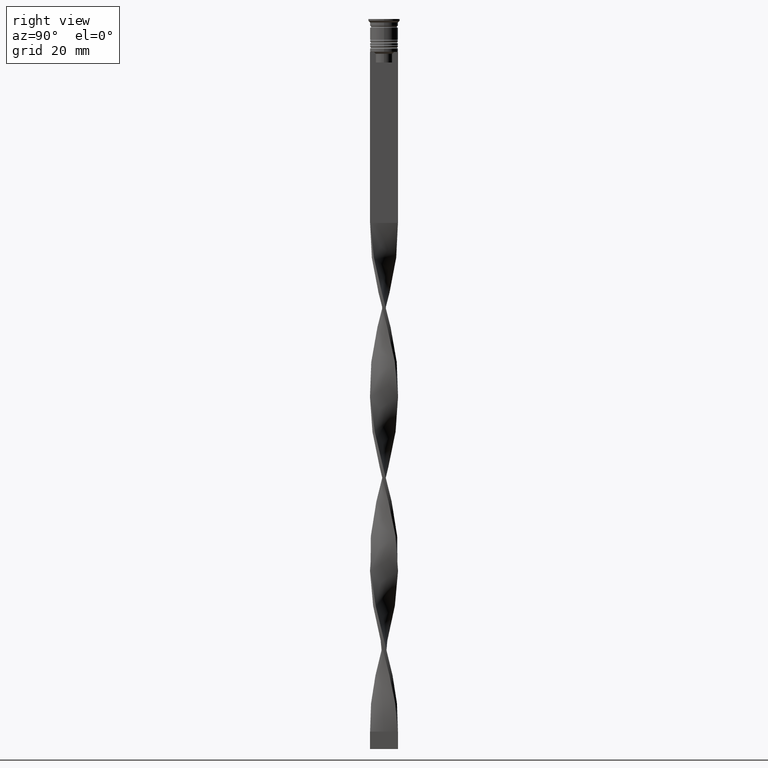
[diagram: clean part render]
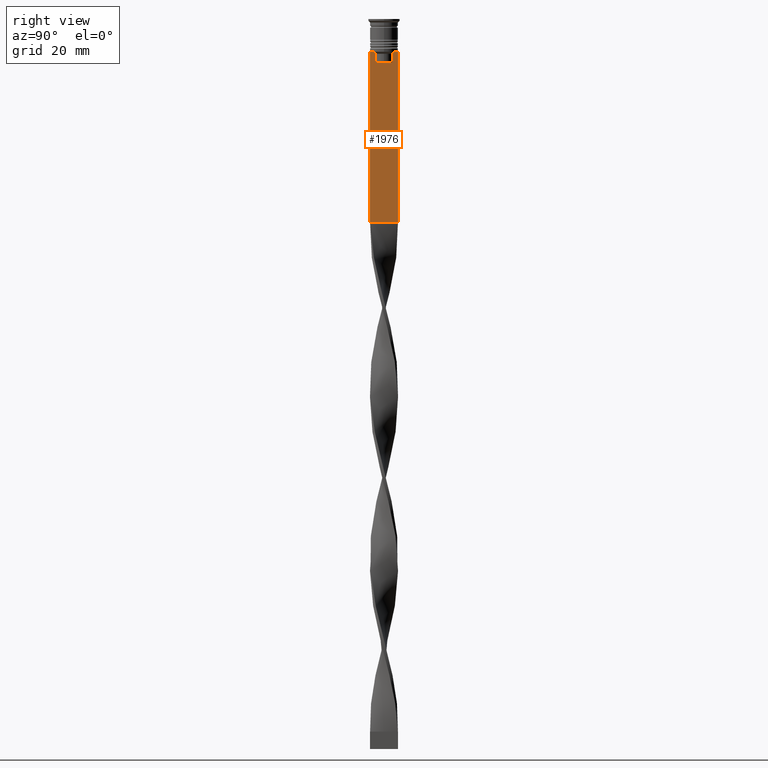
[diagram: same view with one face highlighted and labeled with its STEP entity id]
A machine part, right view. The second image highlights one B-rep face of the part: STEP entity #1976.
In plain terms, the highlighted planar face has unit normal (-1, 0, 0).
Its self-contained STEP definition (entity closure, byte-faithful):
#13 = VERTEX_POINT ( 'NONE', #1251 ) ;
#60 = CARTESIAN_POINT ( 'NONE',  ( 0.5000000000000000000, -4.000000000000000000, -9.500000000000000000 ) ) ;
#70 = CARTESIAN_POINT ( 'NONE',  ( 0.5000000000000000000, 2.347338918861097135, -10.00000000000000000 ) ) ;
#82 = CARTESIAN_POINT ( 'NONE',  ( 0.5000000000000000000, 4.000000000000000000, -9.500000000000000000 ) ) ;
#109 = VECTOR ( 'NONE', #3403, 1000.000000000000000 ) ;
#154 = VERTEX_POINT ( 'NONE', #3917 ) ;
#169 = VECTOR ( 'NONE', #633, 1000.000000000000000 ) ;
#187 = B_SPLINE_CURVE_WITH_KNOTS ( 'NONE', 3,
 ( #2487, #3676, #2462, #3120 ),
 .UNSPECIFIED., .F., .F.,
 ( 4, 4 ),
 ( 0.01178336557230038467, 0.01249758354768160280 ),
 .UNSPECIFIED. ) ;
#319 = DIRECTION ( 'NONE',  ( 0.000000000000000000, -1.000000000000000000, 0.000000000000000000 ) ) ;
#328 = ORIENTED_EDGE ( 'NONE', *, *, #2117, .T. ) ;
#369 = LINE ( 'NONE', #1599, #538 ) ;
#388 = PLANE ( 'NONE',  #1752 ) ;
#474 = EDGE_CURVE ( 'NONE', #3025, #13, #2350, .T. ) ;
#538 = VECTOR ( 'NONE', #1260, 1000.000000000000000 ) ;
#616 = ORIENTED_EDGE ( 'NONE', *, *, #1486, .F. ) ;
#633 = DIRECTION ( 'NONE',  ( 0.000000000000000000, -1.000000000000000000, 0.000000000000000000 ) ) ;
#657 = CARTESIAN_POINT ( 'NONE',  ( 0.5000000000000000000, -4.000000000000000000, -9.500000000000000000 ) ) ;
#681 = EDGE_CURVE ( 'NONE', #723, #1889, #1215, .T. ) ;
#699 = DIRECTION ( 'NONE',  ( 0.000000000000000000, -1.000000000000000000, 0.000000000000000000 ) ) ;
#723 = VERTEX_POINT ( 'NONE', #1033 ) ;
#725 = DIRECTION ( 'NONE',  ( 0.000000000000000000, -1.000000000000000000, 0.000000000000000000 ) ) ;
#738 = VECTOR ( 'NONE', #699, 1000.000000000000000 ) ;
#970 = VERTEX_POINT ( 'NONE', #82 ) ;
#1004 = VECTOR ( 'NONE', #1337, 1000.000000000000000 ) ;
#1033 = CARTESIAN_POINT ( 'NONE',  ( 0.5000000000000000000, -2.856571371417138572, -9.500000000000000000 ) ) ;
#1082 = CARTESIAN_POINT ( 'NONE',  ( 0.5000000000000000000, 4.000000000000000000, -1.437742251701450202 ) ) ;
#1083 = ORIENTED_EDGE ( 'NONE', *, *, #2904, .T. ) ;
#1215 = LINE ( 'NONE', #3109, #2654 ) ;
#1247 = ORIENTED_EDGE ( 'NONE', *, *, #2257, .T. ) ;
#1251 = CARTESIAN_POINT ( 'NONE',  ( 0.5000000000000000000, 2.347338918861097135, -10.00000000000000000 ) ) ;
#1260 = DIRECTION ( 'NONE',  ( 0.000000000000000000, 0.000000000000000000, -1.000000000000000000 ) ) ;
#1280 = CARTESIAN_POINT ( 'NONE',  ( 0.5000000000000000000, -2.347338918861097135, -10.00000000000000000 ) ) ;
#1337 = DIRECTION ( 'NONE',  ( 0.000000000000000000, -1.000000000000000000, 0.000000000000000000 ) ) ;
#1415 = ORIENTED_EDGE ( 'NONE', *, *, #681, .T. ) ;
#1436 = ORIENTED_EDGE ( 'NONE', *, *, #2618, .T. ) ;
#1486 = EDGE_CURVE ( 'NONE', #970, #2142, #3790, .T. ) ;
#1538 = CARTESIAN_POINT ( 'NONE',  ( 0.5000000000000000000, 2.856571371417138572, -9.500000000000000000 ) ) ;
#1543 = VERTEX_POINT ( 'NONE', #3261 ) ;
#1551 = EDGE_CURVE ( 'NONE', #2985, #2142, #3246, .T. ) ;
#1599 = CARTESIAN_POINT ( 'NONE',  ( 0.5000000000000000000, 2.347338918861097135, 0.000000000000000000 ) ) ;
#1678 = EDGE_CURVE ( 'NONE', #970, #3729, #3099, .T. ) ;
#1693 = VECTOR ( 'NONE', #2292, 1000.000000000000000 ) ;
#1752 = AXIS2_PLACEMENT_3D ( 'NONE', #2208, #1846, #1830 ) ;
#1776 = EDGE_CURVE ( 'NONE', #1543, #1991, #2765, .T. ) ;
#1779 = ORIENTED_EDGE ( 'NONE', *, *, #1776, .T. ) ;
#1830 = DIRECTION ( 'NONE',  ( 0.000000000000000000, 0.000000000000000000, 1.000000000000000000 ) ) ;
#1846 = DIRECTION ( 'NONE',  ( -1.000000000000000000, 0.000000000000000000, 0.000000000000000000 ) ) ;
#1854 = CARTESIAN_POINT ( 'NONE',  ( 0.5000000000000000000, 2.399999999999996803, -12.50000000000000000 ) ) ;
#1889 = VERTEX_POINT ( 'NONE', #3852 ) ;
#1948 = ORIENTED_EDGE ( 'NONE', *, *, #3861, .T. ) ;
#1976 = ADVANCED_FACE ( 'NONE', ( #2454 ), #388, .F. ) ;
#1988 = CARTESIAN_POINT ( 'NONE',  ( 0.5000000000000000000, -4.000000000000000000, -1.437742251701450202 ) ) ;
#1991 = VERTEX_POINT ( 'NONE', #3362 ) ;
#2068 = VERTEX_POINT ( 'NONE', #1280 ) ;
#2080 = CARTESIAN_POINT ( 'NONE',  ( 0.5000000000000000000, 2.687094542495898075, -9.666938847453439010 ) ) ;
#2097 = ORIENTED_EDGE ( 'NONE', *, *, #474, .T. ) ;
#2117 = EDGE_CURVE ( 'NONE', #13, #1543, #369, .T. ) ;
#2142 = VERTEX_POINT ( 'NONE', #2816 ) ;
#2190 = LINE ( 'NONE', #3674, #109 ) ;
#2204 = VECTOR ( 'NONE', #2617, 1000.000000000000000 ) ;
#2208 = CARTESIAN_POINT ( 'NONE',  ( 0.5000000000000000000, -4.000000000000000000, -1.437742251701450202 ) ) ;
#2257 = EDGE_CURVE ( 'NONE', #154, #2985, #2918, .T. ) ;
#2292 = DIRECTION ( 'NONE',  ( 0.000000000000000000, 0.000000000000000000, -1.000000000000000000 ) ) ;
#2326 = ORIENTED_EDGE ( 'NONE', *, *, #1551, .T. ) ;
#2350 = B_SPLINE_CURVE_WITH_KNOTS ( 'NONE', 3,
 ( #2378, #2080, #3749, #70 ),
 .UNSPECIFIED., .F., .F.,
 ( 4, 4 ),
 ( 0.004956812174141191595, 0.005670477137898149653 ),
 .UNSPECIFIED. ) ;
#2378 = CARTESIAN_POINT ( 'NONE',  ( 0.5000000000000000000, 2.856571371417138572, -9.500000000000000000 ) ) ;
#2454 = FACE_OUTER_BOUND ( 'NONE', #3812, .T. ) ;
#2462 = CARTESIAN_POINT ( 'NONE',  ( 0.5000000000000000000, -2.687095498514037839, -9.666937905752043037 ) ) ;
#2487 = CARTESIAN_POINT ( 'NONE',  ( 0.5000000000000000000, -2.347338918861097135, -10.00000000000000000 ) ) ;
#2569 = CARTESIAN_POINT ( 'NONE',  ( 0.5000000000000000000, 3.867815921162741422, -9.500000000000000000 ) ) ;
#2597 = VECTOR ( 'NONE', #2636, 1000.000000000000000 ) ;
#2617 = DIRECTION ( 'NONE',  ( 0.000000000000000000, 0.000000000000000000, -1.000000000000000000 ) ) ;
#2618 = EDGE_CURVE ( 'NONE', #3729, #3025, #2810, .T. ) ;
#2636 = DIRECTION ( 'NONE',  ( 0.000000000000000000, 1.000000000000000000, 0.000000000000000000 ) ) ;
#2643 = CARTESIAN_POINT ( 'NONE',  ( 0.5000000000000000000, -4.000000000000000000, -58.50000000000000000 ) ) ;
#2654 = VECTOR ( 'NONE', #725, 1000.000000000000000 ) ;
#2765 = LINE ( 'NONE', #1854, #738 ) ;
#2810 = LINE ( 'NONE', #657, #3536 ) ;
#2816 = CARTESIAN_POINT ( 'NONE',  ( 0.5000000000000000000, 4.000000000000000000, -58.50000000000000000 ) ) ;
#2860 = ORIENTED_EDGE ( 'NONE', *, *, #3354, .T. ) ;
#2904 = EDGE_CURVE ( 'NONE', #1889, #154, #3853, .T. ) ;
#2918 = LINE ( 'NONE', #1988, #2204 ) ;
#2941 = CARTESIAN_POINT ( 'NONE',  ( 0.5000000000000000000, -4.000000000000000000, -58.50000000000000000 ) ) ;
#2985 = VERTEX_POINT ( 'NONE', #2643 ) ;
#3025 = VERTEX_POINT ( 'NONE', #1538 ) ;
#3099 = LINE ( 'NONE', #60, #169 ) ;
#3109 = CARTESIAN_POINT ( 'NONE',  ( 0.5000000000000000000, -4.000000000000000000, -9.500000000000000000 ) ) ;
#3120 = CARTESIAN_POINT ( 'NONE',  ( 0.5000000000000000000, -2.856571371417138572, -9.500000000000000000 ) ) ;
#3192 = CARTESIAN_POINT ( 'NONE',  ( 0.5000000000000000000, -4.000000000000000000, -9.500000000000000000 ) ) ;
#3246 = LINE ( 'NONE', #2941, #2597 ) ;
#3261 = CARTESIAN_POINT ( 'NONE',  ( 0.5000000000000000000, 2.347338918861097135, -12.50000000000000000 ) ) ;
#3354 = EDGE_CURVE ( 'NONE', #1991, #2068, #2190, .T. ) ;
#3362 = CARTESIAN_POINT ( 'NONE',  ( 0.5000000000000000000, -2.347338918861097135, -12.50000000000000000 ) ) ;
#3403 = DIRECTION ( 'NONE',  ( -0.000000000000000000, -0.000000000000000000, 1.000000000000000000 ) ) ;
#3536 = VECTOR ( 'NONE', #319, 1000.000000000000000 ) ;
#3674 = CARTESIAN_POINT ( 'NONE',  ( 0.5000000000000000000, -2.347338918861097135, 0.000000000000000000 ) ) ;
#3676 = CARTESIAN_POINT ( 'NONE',  ( 0.5000000000000000000, -2.517408374291112416, -9.833662228483172285 ) ) ;
#3729 = VERTEX_POINT ( 'NONE', #2569 ) ;
#3749 = CARTESIAN_POINT ( 'NONE',  ( 0.5000000000000000000, 2.517407211010872281, -9.833663366238582171 ) ) ;
#3790 = LINE ( 'NONE', #1082, #1693 ) ;
#3812 = EDGE_LOOP ( 'NONE', ( #1436, #2097, #328, #1779, #2860, #1948, #1415, #1083, #1247, #2326, #616, #3849 ) ) ;
#3849 = ORIENTED_EDGE ( 'NONE', *, *, #1678, .T. ) ;
#3852 = CARTESIAN_POINT ( 'NONE',  ( 0.5000000000000000000, -3.867815921162741422, -9.500000000000000000 ) ) ;
#3853 = LINE ( 'NONE', #3192, #1004 ) ;
#3861 = EDGE_CURVE ( 'NONE', #2068, #723, #187, .T. ) ;
#3917 = CARTESIAN_POINT ( 'NONE',  ( 0.5000000000000000000, -4.000000000000000000, -9.500000000000000000 ) ) ;